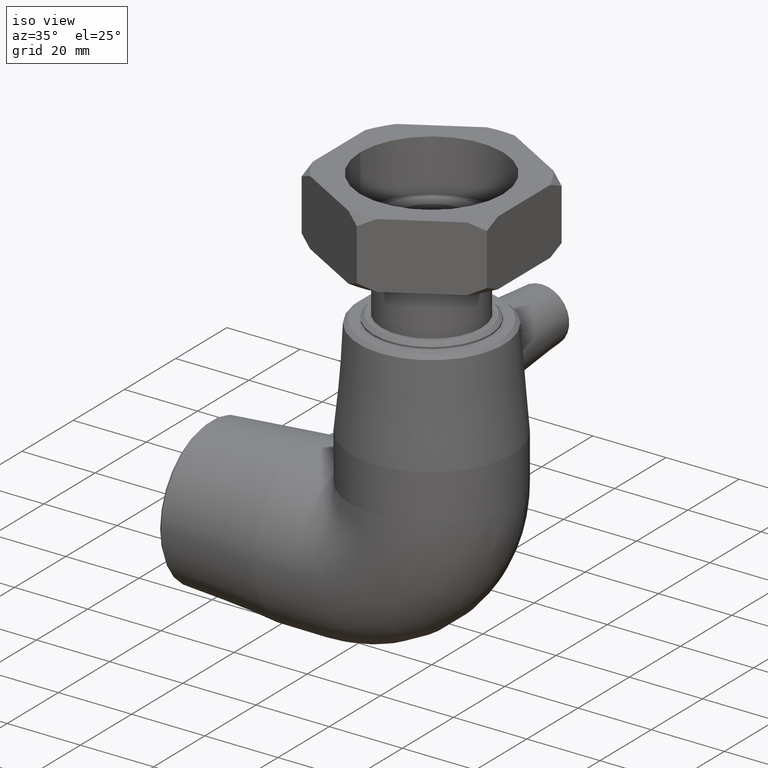
[diagram: clean part render]
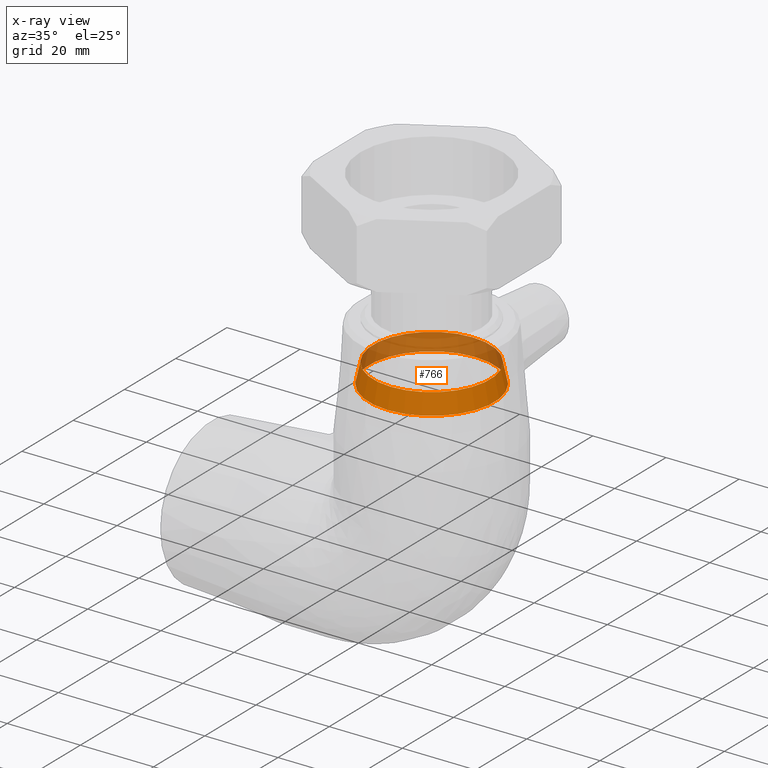
[diagram: x-ray — body ghosted, one internal face saturated and labeled with its STEP entity id]
A machine part, iso view, then the same camera in x-ray: the body is ghosted and one INTERNAL B-rep face — a face not visible from any outside direction — is saturated and labeled: STEP entity #766.
In plain terms, the highlighted conical surface has half-angle 12 deg.
Its self-contained STEP definition (entity closure, byte-faithful):
#117=FACE_BOUND('',#221,.T.);
#159=FACE_OUTER_BOUND('',#220,.T.);
#220=EDGE_LOOP('',(#550));
#221=EDGE_LOOP('',(#551));
#323=CIRCLE('',#832,16.);
#324=CIRCLE('',#833,17.1336349955735);
#375=VERTEX_POINT('',#1192);
#376=VERTEX_POINT('',#1194);
#453=EDGE_CURVE('',#375,#375,#323,.T.);
#454=EDGE_CURVE('',#376,#376,#324,.T.);
#550=ORIENTED_EDGE('',*,*,#453,.F.);
#551=ORIENTED_EDGE('',*,*,#454,.T.);
#744=CONICAL_SURFACE('',#831,16.5668174977867,12.);
#766=ADVANCED_FACE('',(#159,#117),#744,.F.);
#831=AXIS2_PLACEMENT_3D('',#1191,#946,#947);
#832=AXIS2_PLACEMENT_3D('',#1193,#948,#949);
#833=AXIS2_PLACEMENT_3D('',#1195,#950,#951);
#946=DIRECTION('center_axis',(6.12323399573677E-17,-2.27504718160893E-18,
-1.));
#947=DIRECTION('ref_axis',(0.,1.,0.));
#948=DIRECTION('center_axis',(6.12323399573677E-17,-2.27504718160893E-18,
-1.));
#949=DIRECTION('ref_axis',(-1.,0.,-6.12323399573677E-17));
#950=DIRECTION('center_axis',(6.12323399573677E-17,-2.27504718160893E-18,
-1.));
#951=DIRECTION('ref_axis',(-1.,0.,-6.12323399573677E-17));
#1191=CARTESIAN_POINT('Origin',(-2.91874153796786E-15,-3.03339624214524E-17,
47.6666666666667));
#1192=CARTESIAN_POINT('',(-3.08202777785417E-15,16.,50.3333333333333));
#1193=CARTESIAN_POINT('Origin',(-3.08202777785417E-15,-2.42671699371619E-17,
50.3333333333333));
#1194=CARTESIAN_POINT('',(-2.75545529808154E-15,17.1336349955735,45.));
#1195=CARTESIAN_POINT('Origin',(-2.75545529808154E-15,-3.64007549057428E-17,
45.));